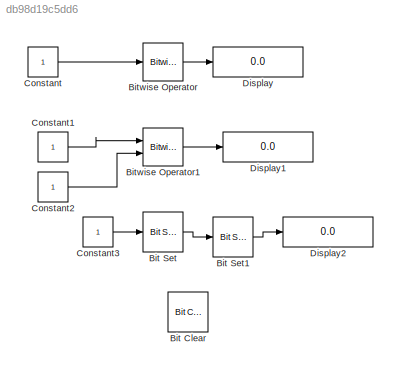
MODEL slx_db98d19c5dd6
KIND model
CONFIG AbsTol = auto
CONFIG EnableMultiTasking = off
CONFIG FixedStep = auto
CONFIG MaxStep = auto
CONFIG MinStep = auto
CONFIG RelTol = 1e-3
CONFIG SampleTimeConstraint = Unconstrained
CONFIG SolverName = VariableStepAuto
CONFIG StartTime = 0.0
CONFIG StopTime = 10.0
BLOCK [Reference] Bit Clear  REF=simulink/Logic and Bit
Operations/Bit Clear
  Ports = [1, 1]
  SourceBlock = simulink/Logic and Bit\nOperations/Bit Clear
  SourceProductBaseCode = SL
  SourceType = Bit Clear
BLOCK [Reference] Bit Set  REF=simulink/Logic and Bit
Operations/Bit Set
  Ports = [1, 1]
  SourceBlock = simulink/Logic and Bit\nOperations/Bit Set
  SourceProductBaseCode = SL
  SourceType = Bit Set
BLOCK [Reference] Bit Set1  REF=simulink/Logic and Bit
Operations/Bit Set
  Ports = [1, 1]
  SourceBlock = simulink/Logic and Bit\nOperations/Bit Set
  SourceProductBaseCode = SL
  SourceType = Bit Set
BLOCK [Reference] Bitwise Operator  REF=simulink/Logic and Bit
Operations/Bitwise
Operator
  Ports = [1, 1]
  SourceBlock = simulink/Logic and Bit\nOperations/Bitwise\nOperator
  SourceProductBaseCode = SL
  SourceType = Bitwise Operator
BLOCK [Reference] Bitwise Operator1  REF=simulink/Logic and Bit
Operations/Bitwise
Operator
  Ports = [2, 1]
  SourceBlock = simulink/Logic and Bit\nOperations/Bitwise\nOperator
  SourceProductBaseCode = SL
  SourceType = Bitwise Operator
BLOCK [Constant] Constant
  OutDataTypeStr = int8
BLOCK [Constant] Constant1
  OutDataTypeStr = int8
BLOCK [Constant] Constant2
  OutDataTypeStr = int8
BLOCK [Constant] Constant3
  OutDataTypeStr = int8
BLOCK [Display] Display
  Decimation = 1
  Format = binary (Stored Integer)
  Ports = [1]
BLOCK [Display] Display1
  Decimation = 1
  Format = binary (Stored Integer)
  Ports = [1]
BLOCK [Display] Display2
  Decimation = 1
  Format = binary (Stored Integer)
  Ports = [1]
LINE Bit Set1:1 -> Display2:1
LINE Bit Set:1 -> Bit Set1:1
LINE Bitwise Operator1:1 -> Display1:1
LINE Bitwise Operator:1 -> Display:1
LINE Constant1:1 -> Bitwise Operator1:1
LINE Constant2:1 -> Bitwise Operator1:2
LINE Constant3:1 -> Bit Set:1
LINE Constant:1 -> Bitwise Operator:1
